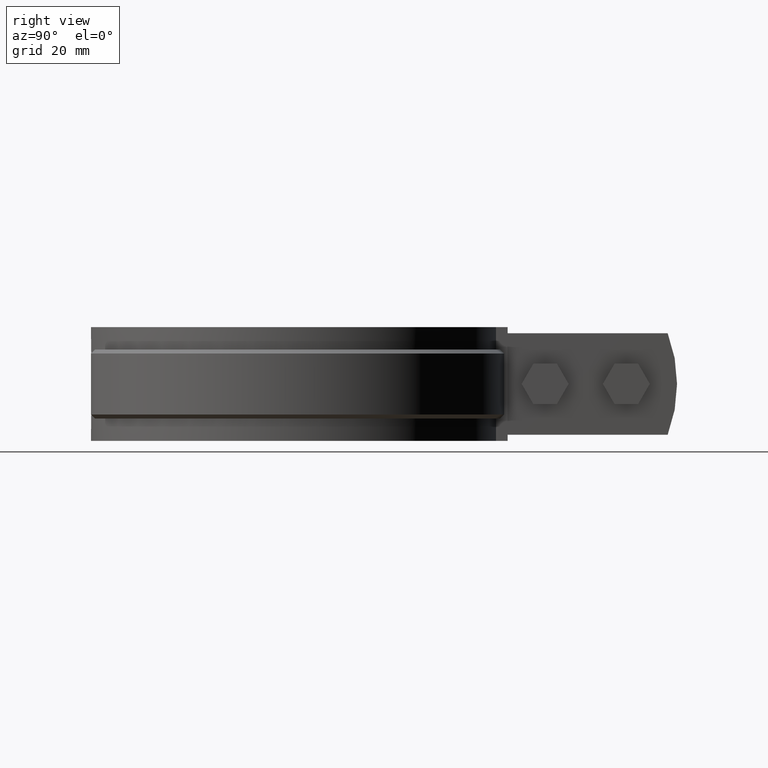
[diagram: clean part render]
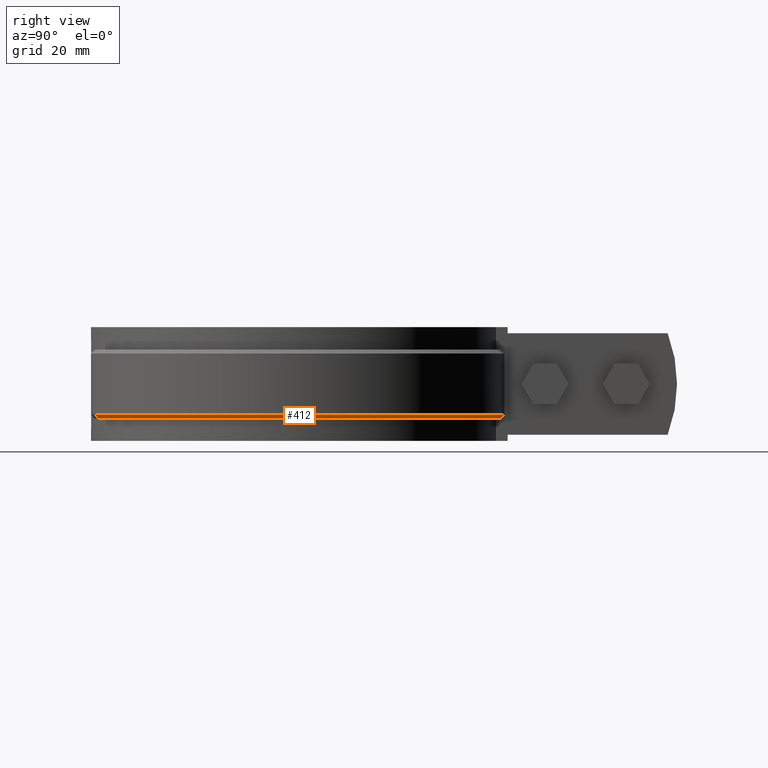
[diagram: same view with one face highlighted and labeled with its STEP entity id]
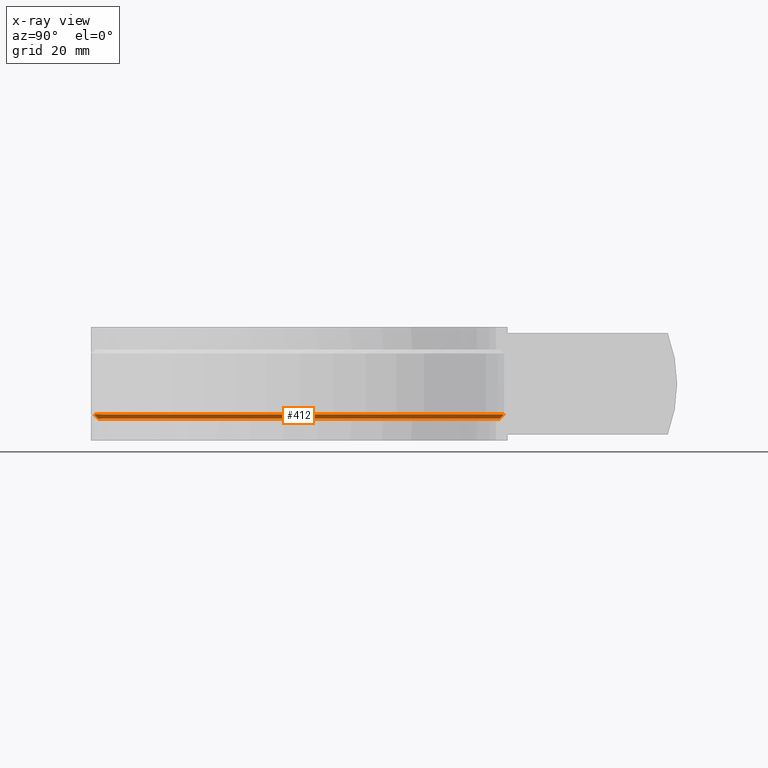
[diagram: x-ray of the same camera — body ghosted, the highlighted face saturated]
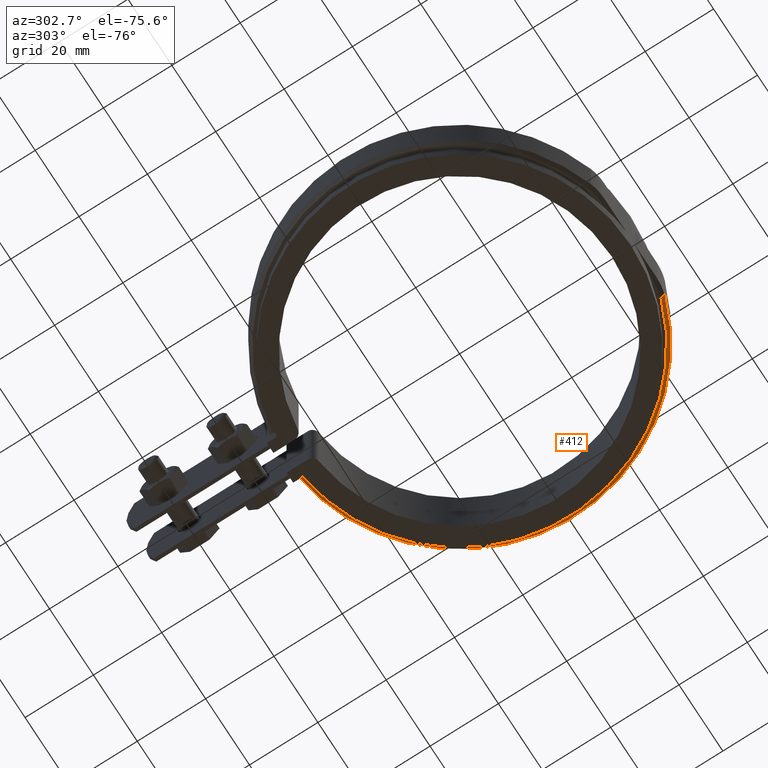
[diagram: same view with one face highlighted and labeled with its STEP entity id]
A machine part, right view. The second image highlights one B-rep face of the part: STEP entity #412.
The next image is the same camera in x-ray: the body ghosted, the highlighted face saturated — about 0% of this face is hidden behind the body in this view.
A second angle (auxiliary view) of the same face is appended — the face is thin or edge-on in the first view.
In plain terms, the highlighted conical surface has half-angle 45 deg.
Its self-contained STEP definition (entity closure, byte-faithful):
#412 = ADVANCED_FACE( '', ( #718 ), #719, .T. );
#718 = FACE_OUTER_BOUND( '', #1690, .T. );
#719 = CONICAL_SURFACE( '', #1691, 51.0500000000000, 0.785398163397452 );
#1690 = EDGE_LOOP( '', ( #3281, #3282, #3283, #3284 ) );
#1691 = AXIS2_PLACEMENT_3D( '', #3285, #3286, #3287 );
#3281 = ORIENTED_EDGE( '', *, *, #4305, .F. );
#3282 = ORIENTED_EDGE( '', *, *, #4338, .F. );
#3283 = ORIENTED_EDGE( '', *, *, #4340, .F. );
#3284 = ORIENTED_EDGE( '', *, *, #4270, .F. );
#3285 = CARTESIAN_POINT( '', ( 0.000000000000000, -1.38777878078145E-014, -8.50000000000000 ) );
#3286 = DIRECTION( '', ( 0.000000000000000, 0.000000000000000, 1.00000000000000 ) );
#3287 = DIRECTION( '', ( 1.00000000000000, 0.000000000000000, 0.000000000000000 ) );
#4270 = EDGE_CURVE( '', #4955, #4948, #4957, .F. );
#4305 = EDGE_CURVE( '', #5013, #4955, #5015, .T. );
#4338 = EDGE_CURVE( '', #5058, #5013, #5065, .T. );
#4340 = EDGE_CURVE( '', #4948, #5058, #5067, .T. );
#4948 = VERTEX_POINT( '', #7586 );
#4955 = VERTEX_POINT( '', #7594 );
#4957 = CIRCLE( '', #7597, 51.0500000000000 );
#5013 = VERTEX_POINT( '', #7676 );
#5015 = B_SPLINE_CURVE_WITH_KNOTS( '', 3, ( #7679, #7680, #7681, #7682 ), .UNSPECIFIED., .F., .F., ( 4, 4 ), ( 1.96261557335472E-017, 0.00141906111018386 ), .UNSPECIFIED. );
#5058 = VERTEX_POINT( '', #7746 );
#5065 = CIRCLE( '', #7755, 52.0500000000000 );
#5067 = LINE( '', #7758, #7759 );
#7586 = CARTESIAN_POINT( '', ( 16.5458912025651, -48.2942645074224, -8.50000000000000 ) );
#7594 = CARTESIAN_POINT( '', ( 6.00000000000001, 50.6961783569531, -8.50000000000000 ) );
#7597 = AXIS2_PLACEMENT_3D( '', #8529, #8530, #8531 );
#7676 = CARTESIAN_POINT( '', ( 6.00000000000001, 51.7030221553828, -7.50000000000000 ) );
#7679 = CARTESIAN_POINT( '', ( 6.00000000000001, 51.7030221553827, -7.50000000000000 ) );
#7680 = CARTESIAN_POINT( '', ( 6.00000000000001, 51.3674295438524, -7.83335547030038 ) );
#7681 = CARTESIAN_POINT( '', ( 6.00000000000001, 51.0318153765527, -8.16668924174697 ) );
#7682 = CARTESIAN_POINT( '', ( 6.00000000000001, 50.6961783569531, -8.50000000000001 ) );
#7746 = CARTESIAN_POINT( '', ( 16.8700026854753, -49.2402834008097, -7.50000000000000 ) );
#7755 = AXIS2_PLACEMENT_3D( '', #8642, #8643, #8644 );
#7758 = CARTESIAN_POINT( '', ( 16.5458912025651, -48.2942645074224, -8.50000000000000 ) );
#7759 = VECTOR( '', #8646, 1000.00000000000 );
#8529 = CARTESIAN_POINT( '', ( 0.000000000000000, -1.38777878078145E-014, -8.50000000000000 ) );
#8530 = DIRECTION( '', ( 0.000000000000000, 0.000000000000000, 1.00000000000000 ) );
#8531 = DIRECTION( '', ( 1.00000000000000, 0.000000000000000, 0.000000000000000 ) );
#8642 = CARTESIAN_POINT( '', ( 0.000000000000000, -1.38777878078145E-014, -7.50000000000000 ) );
#8643 = DIRECTION( '', ( 0.000000000000000, 0.000000000000000, 1.00000000000000 ) );
#8644 = DIRECTION( '', ( 1.00000000000000, 0.000000000000000, 0.000000000000000 ) );
#8646 = DIRECTION( '', ( 0.229181427426219, -0.668936374644767, 0.707106781186545 ) );